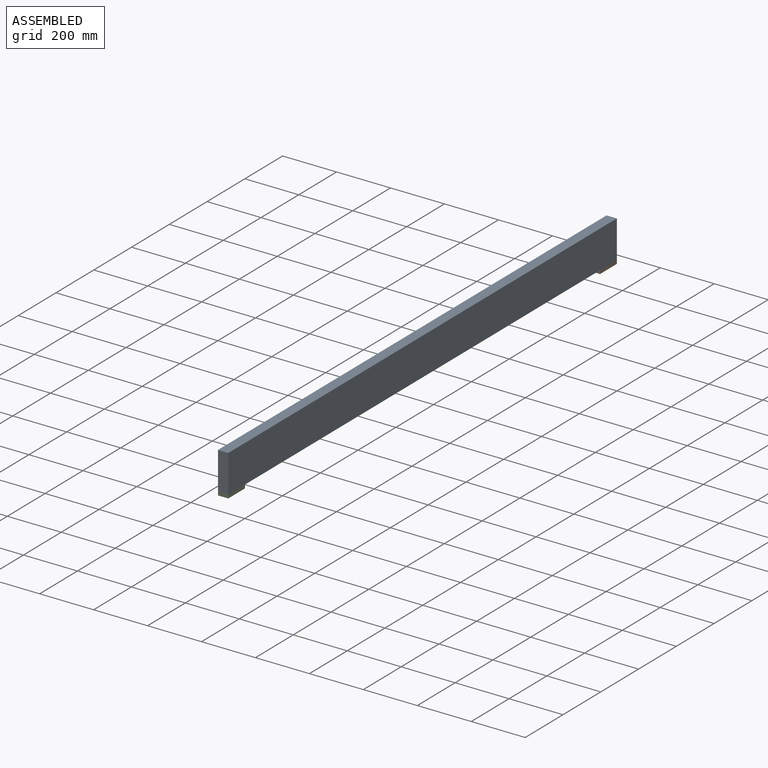
[diagram: assembled view]
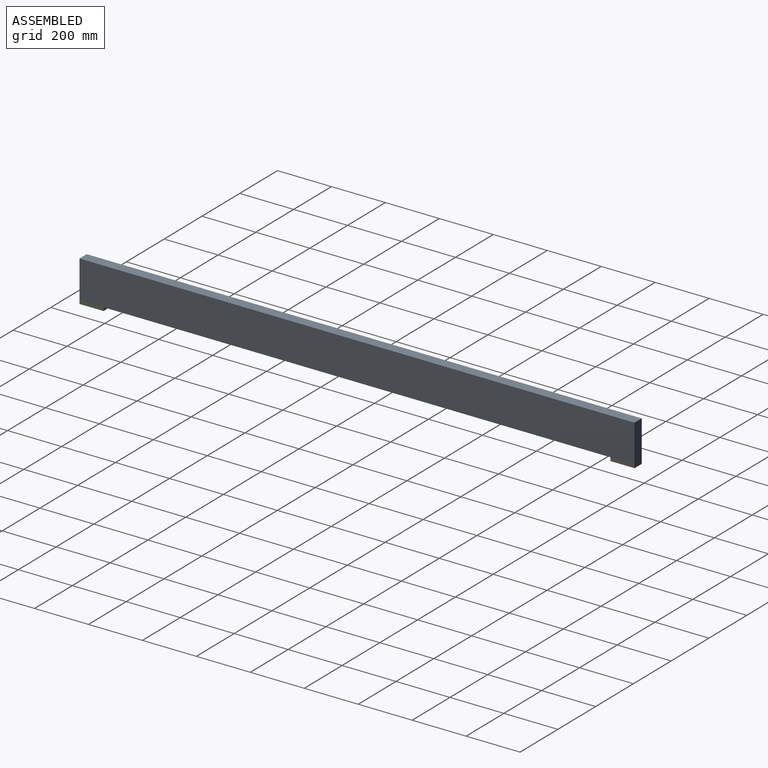
[diagram: assembled view, second angle]
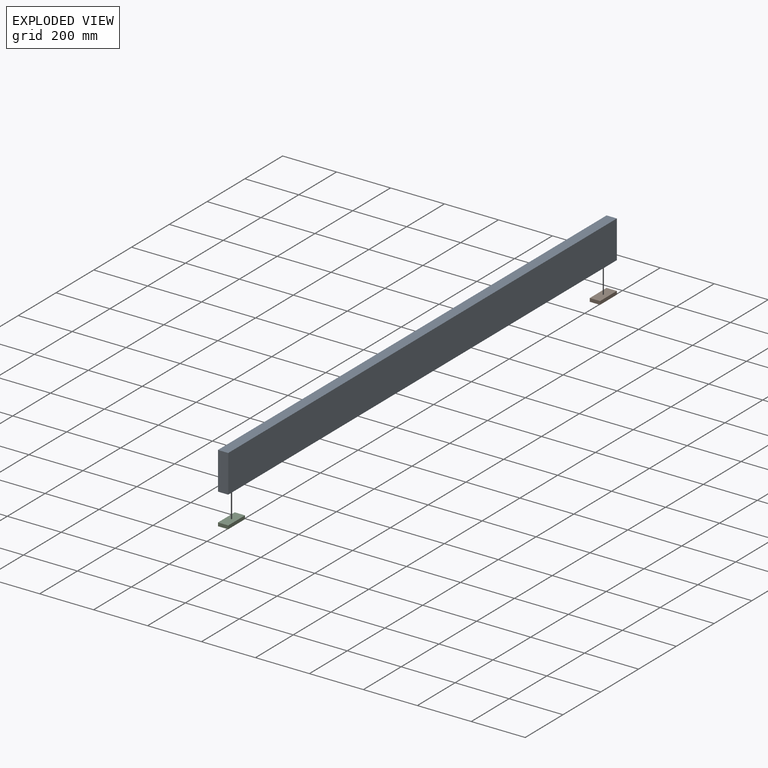
[diagram: exploded view]
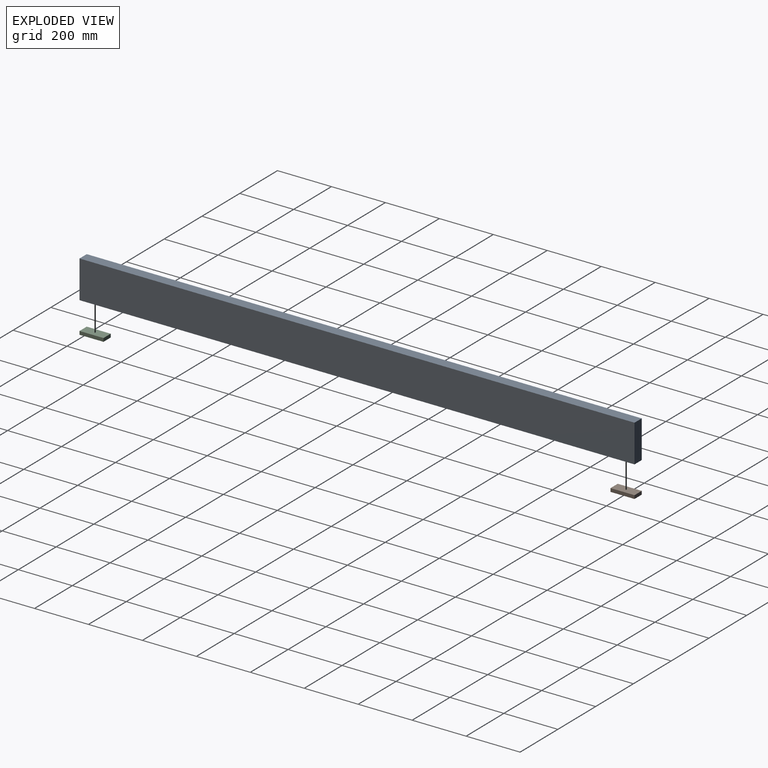
[diagram: exploded view, second angle]
ASSEMBLY  parts=3 mates=2
PART A: 6 faces, bbox 139.7x2057.4x38.1 mm
  f0: plane 2057.4x139.7mm, normal (0,0,1), area 287418.8mm2, adj f1,f3,f4,f5
  f1: plane 2057.4x38.1mm, normal (-1,0,0), area 78386.9mm2, adj f0,f2,f4,f5
  f2: plane 2057.4x139.7mm, normal (0,0,-1), area 287418.8mm2, adj f1,f3,f4,f5
  f3: plane 2057.4x38.1mm, normal (1,0,0), area 78386.9mm2, adj f0,f2,f4,f5
  f4: plane 139.7x38.1mm, normal (0,-1,0), area 5322.6mm2, adj f0,f1,f2,f3
  f5: plane 139.7x38.1mm, normal (0,1,0), area 5322.6mm2, adj f0,f1,f2,f3
PART B: 6 faces, bbox 88.9x12.7x38.1 mm
  f0: plane 38.1x12.7mm, normal (1,0,0), area 483.9mm2, adj f1,f3,f4,f5
  f1: plane 88.9x12.7mm, normal (0,0,1), area 1129mm2, adj f0,f2,f4,f5
  f2: plane 38.1x12.7mm, normal (-1,0,0), area 483.9mm2, adj f1,f3,f4,f5
  f3: plane 88.9x12.7mm, normal (0,0,-1), area 1129mm2, adj f0,f2,f4,f5
  f4: plane 88.9x38.1mm, normal (0,-1,0), area 3387.1mm2, adj f0,f1,f2,f3
  f5: plane 88.9x38.1mm, normal (0,1,0), area 3387.1mm2, adj f0,f1,f2,f3
PART C: same geometry as B
PLACE A rot(axis=(0,-1,0),90deg) t=(0,0,247.65)mm
PLACE B rot(axis=(-0.58,-0.58,0.58),120deg) t=(0,2622.55,0)mm
PLACE C rot(axis=(-0.58,-0.58,0.58),120deg) t=(0,654.05,0)mm
MATE fastened A.f1 <-> C.f4  axis (0,0,-1) through (0,0,0)mm
MATE fastened B.f4 <-> A.f1  axis (0,0,1) through (0,2057.4,0)mm
